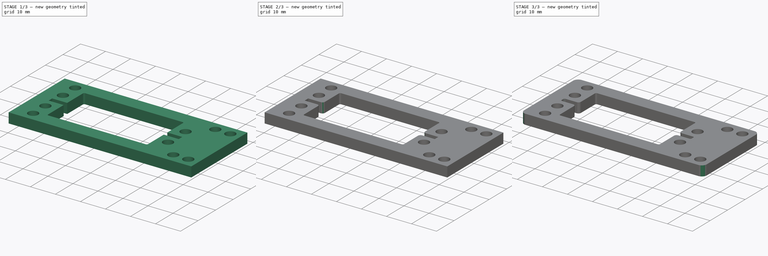
[diagram: build sequence overview — one tinted view per stage of 3, left to right]
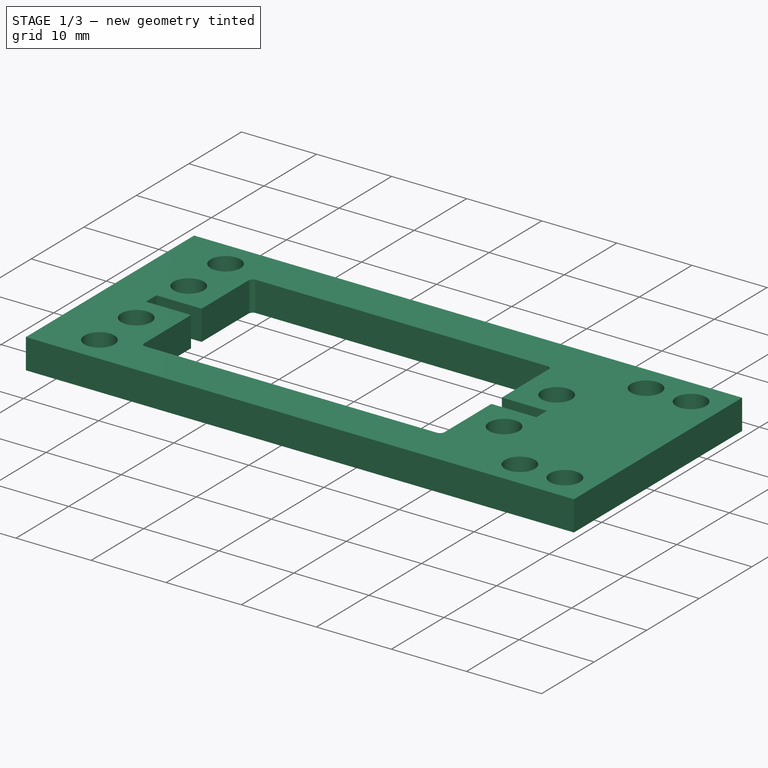
[diagram: stage 1 of 3 — iso view after this stage's code; geometry added in this stage tinted green]
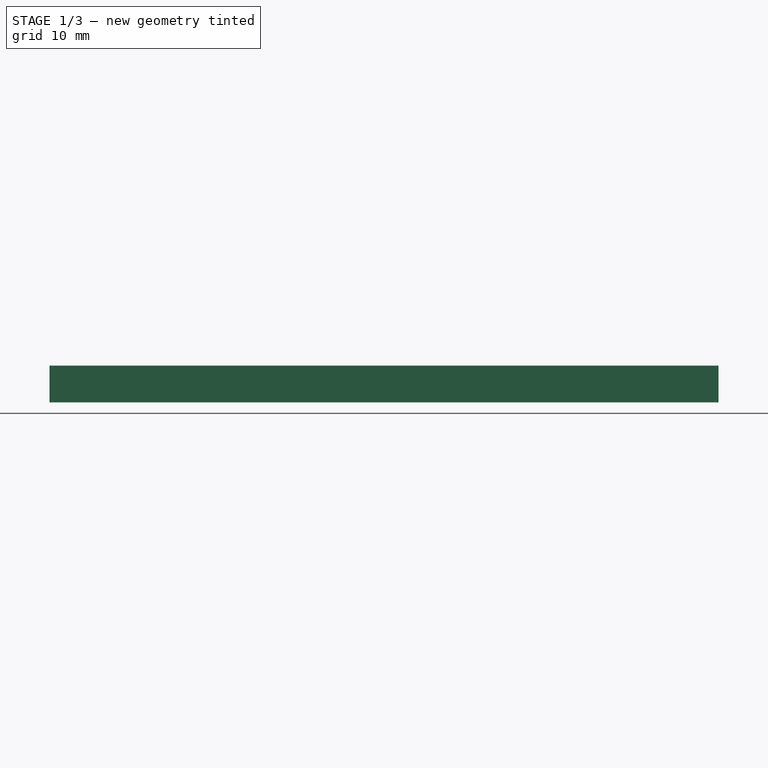
[diagram: stage 1 of 3 — front view after this stage's code; geometry added in this stage tinted green]
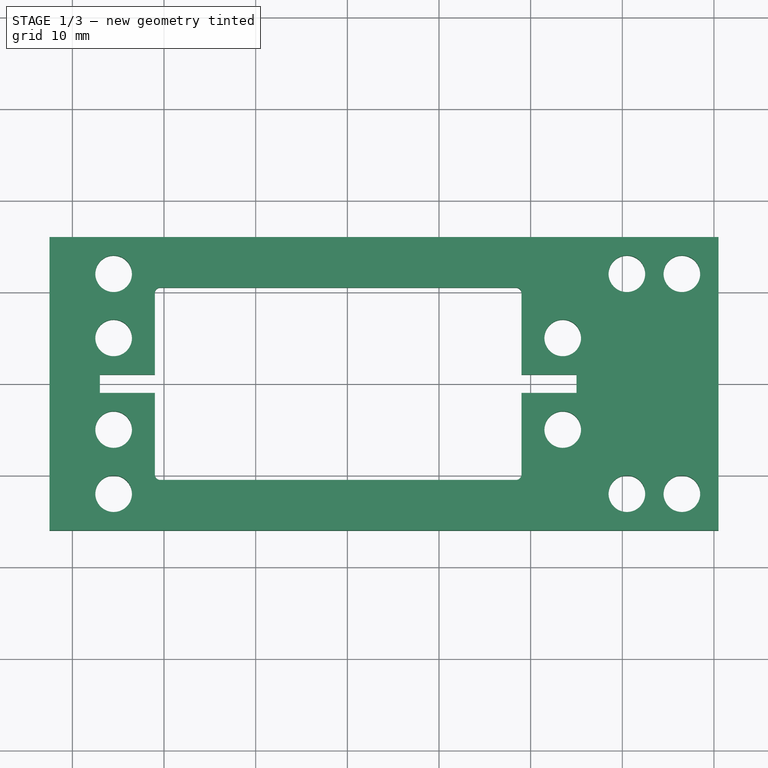
[diagram: stage 1 of 3 — top view after this stage's code; geometry added in this stage tinted green]
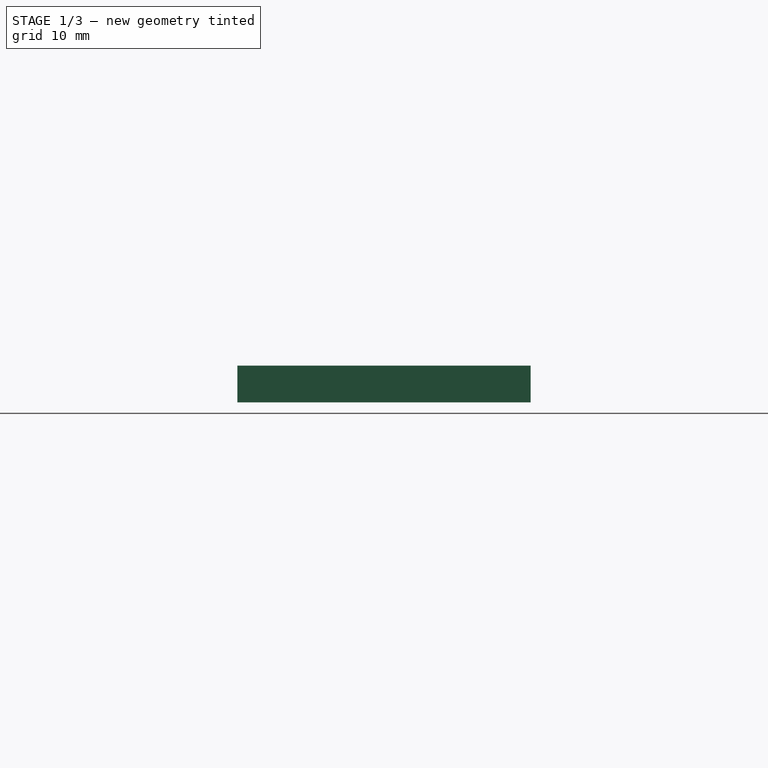
[diagram: stage 1 of 3 — right view after this stage's code; geometry added in this stage tinted green]
FCSTD DOCUMENT  (FreeCAD 0.19R24276 (Git))
Label: Servo_support_V1
License: All rights reserved
LicenseURL: http://en.wikipedia.org/wiki/All_rights_reserved
objects: PartDesign::Fillet×4, Sketcher::SketchObject×1, PartDesign::Pad×1, PartDesign::Body×1
note: 12 computed .brp shape members not serialized (recipe doc carries the construction recipe); baked Part::Feature solids carry a one-line shape summary decoded from their .brp

FEATURE [Sketcher::SketchObject] Sketch007  label="Sketch005_70x032_"
  AttachmentOffset = pos=(0,0,-5) rot=(0,0,1;0rad)
  FullyConstrained = false
  MapMode = 5
  Placement = pos=(0,0,-3) rot=(0,0,1;0rad)
  sketch-geometry (72):
    g0: LineSegment StartX=-31 StartY=16 StartZ=0 EndX=9 EndY=16 EndZ=0
    g1: LineSegment StartX=9 StartY=16 StartZ=0 EndX=9 EndY=-16 EndZ=0
    g2: LineSegment StartX=9 StartY=-16 StartZ=0 EndX=-31 EndY=-16 EndZ=0
    g3: LineSegment StartX=-31 StartY=-16 StartZ=0 EndX=-31 EndY=16 EndZ=0
    g4: LineSegment StartX=-31 StartY=16 StartZ=0 EndX=9 EndY=-16 EndZ=0
    g5: LineSegment StartX=-31 StartY=-16 StartZ=0 EndX=9 EndY=16 EndZ=0
    g6: GeomPoint X=-11 Y=0 Z=0
    g7: GeomPoint X=-11 Y=0 Z=0
    g8: LineSegment StartX=-39.5 StartY=16 StartZ=0 EndX=17.5 EndY=16 EndZ=0
    g9: LineSegment StartX=17.5 StartY=16 StartZ=0 EndX=17.5 EndY=-16 EndZ=0
    g10: LineSegment StartX=17.5 StartY=-16 StartZ=0 EndX=16.3733 EndY=-16 EndZ=0
    g11: LineSegment StartX=-39.5 StartY=-16 StartZ=0 EndX=-39.5 EndY=16 EndZ=0
    g12: LineSegment StartX=-39.5 StartY=16 StartZ=0 EndX=17.5 EndY=-16 EndZ=0
    g13: LineSegment StartX=-39.5 StartY=-16 StartZ=0 EndX=17.5 EndY=16 EndZ=0
    g14: GeomPoint X=-11 Y=0 Z=0
    g15: GeomPoint X=-11 Y=0 Z=0
    g16: Circle CenterX=-35.5 CenterY=5 CenterZ=0 NormalX=0 NormalY=0 NormalZ=1 AngleXU=0 Radius=2
    g17: Circle CenterX=-35.5 CenterY=-5 CenterZ=0 NormalX=0 NormalY=0 NormalZ=1 AngleXU=0 Radius=2
    g18: LineSegment StartX=-11 StartY=0 StartZ=0 EndX=-11 EndY=-5 EndZ=0
    g19: Circle CenterX=13.5 CenterY=5 CenterZ=0 NormalX=0 NormalY=0 NormalZ=1 AngleXU=0 Radius=2
    g20: Circle CenterX=13.5 CenterY=-5 CenterZ=0 NormalX=0 NormalY=0 NormalZ=1 AngleXU=0 Radius=2
    g21: LineSegment StartX=-11 StartY=0 StartZ=0 EndX=-35.5 EndY=0 EndZ=0
    g22: LineSegment StartX=-11 StartY=0 StartZ=0 EndX=49.8748 EndY=0 EndZ=0
    g23: Circle CenterX=-35.5 CenterY=12 CenterZ=0 NormalX=0 NormalY=0 NormalZ=1 AngleXU=0 Radius=2
    g24: Circle CenterX=-35.5 CenterY=-12 CenterZ=0 NormalX=0 NormalY=0 NormalZ=1 AngleXU=0 Radius=2
    g25: Circle CenterX=20.5 CenterY=12 CenterZ=0 NormalX=0 NormalY=0 NormalZ=1 AngleXU=0 Radius=2
    g26: Circle CenterX=20.5 CenterY=-12 CenterZ=0 NormalX=0 NormalY=0 NormalZ=1 AngleXU=0 Radius=2
    g27: LineSegment StartX=24.5 StartY=16 StartZ=0 EndX=24.5 EndY=-16 EndZ=0
    g28: LineSegment StartX=17.5 StartY=16 StartZ=0 EndX=24.5 EndY=16 EndZ=0
    g29: LineSegment StartX=17.5 StartY=-16 StartZ=0 EndX=24.5 EndY=-16 EndZ=0
    g30: ArcOfCircle CenterX=7.75 CenterY=-13.4234 CenterZ=0 NormalX=0 NormalY=0 NormalZ=1 AngleXU=0 Radius=9 StartAngle=3.43194 EndAngle=5.99283
    g31: LineSegment StartX=0 StartY=0 StartZ=0 EndX=7.75 EndY=-13.4234 EndZ=0
    g32: LineSegment StartX=-0.873288 StartY=-16 StartZ=0 EndX=-39.5 EndY=-16 EndZ=0
    g33: Circle CenterX=26.5 CenterY=-12 CenterZ=0 NormalX=0 NormalY=0 NormalZ=1 AngleXU=0 Radius=2
    g34: Circle CenterX=26.5 CenterY=12 CenterZ=0 NormalX=0 NormalY=0 NormalZ=1 AngleXU=0 Radius=2
    g35: LineSegment StartX=30.5 StartY=16 StartZ=0 EndX=30.5 EndY=-16 EndZ=0
    g36: LineSegment StartX=24.5 StartY=16 StartZ=0 EndX=30.5 EndY=16 EndZ=0
    g37: LineSegment StartX=24.5 StartY=-16 StartZ=0 EndX=30.5 EndY=-16 EndZ=0
    g38: LineSegment StartX=-31 StartY=10.5 StartZ=0 EndX=9 EndY=10.5 EndZ=0
    g39: LineSegment StartX=9 StartY=10.5 StartZ=0 EndX=9 EndY=3 EndZ=0
    g40: LineSegment StartX=9 StartY=-10.5 StartZ=0 EndX=-31 EndY=-10.5 EndZ=0
    g41: LineSegment StartX=-31 StartY=-10.5 StartZ=0 EndX=-31 EndY=10.5 EndZ=0
    g42: LineSegment StartX=9 StartY=3 StartZ=0 EndX=15.25 EndY=3 EndZ=0
    g43: LineSegment StartX=15.25 StartY=3 StartZ=0 EndX=15.25 EndY=-3 EndZ=0
    g44: LineSegment StartX=15.25 StartY=-3 StartZ=0 EndX=9.25 EndY=-3 EndZ=0
    g45: LineSegment StartX=9.25 StartY=-3 StartZ=0 EndX=9.25 EndY=0 EndZ=0
    g46: LineSegment StartX=-11 StartY=0 StartZ=0 EndX=15.25 EndY=0 EndZ=0
    g47: LineSegment StartX=9 StartY=-3 StartZ=0 EndX=9 EndY=-10.5 EndZ=0
    g48: LineSegment StartX=15.25 StartY=3 StartZ=0 EndX=15.25 EndY=2.5 EndZ=0
    g49: LineSegment StartX=9 StartY=3 StartZ=0 EndX=15.25 EndY=2.5 EndZ=0
    g50: LineSegment StartX=15.25 StartY=-3 StartZ=0 EndX=15.25 EndY=-2.5 EndZ=0
    g51: LineSegment StartX=9.25 StartY=-3 StartZ=0 EndX=15.25 EndY=-2.5 EndZ=0
    g52: LineSegment StartX=15.25 StartY=2.5 StartZ=0 EndX=15.25 EndY=-2.5 EndZ=0
    g53: LineSegment StartX=-39.5 StartY=-16 StartZ=0 EndX=30.5 EndY=-16 EndZ=0
    g54: LineSegment StartX=30.5 StartY=16 StartZ=0 EndX=-39.5 EndY=16 EndZ=0
    g55: LineSegment StartX=-31 StartY=1 StartZ=0 EndX=-37 EndY=1 EndZ=0
    g56: LineSegment StartX=-37 StartY=1 StartZ=0 EndX=-37 EndY=-1 EndZ=0
    g57: LineSegment StartX=-37 StartY=-1 StartZ=0 EndX=-31 EndY=-1 EndZ=0
    g58: LineSegment StartX=-31 StartY=-1 StartZ=0 EndX=-31 EndY=1 EndZ=0
    g59: LineSegment StartX=-35.5 StartY=0 StartZ=0 EndX=-31 EndY=0 EndZ=0
    g60: LineSegment StartX=9 StartY=1 StartZ=0 EndX=15 EndY=1 EndZ=0
    g61: LineSegment StartX=15 StartY=1 StartZ=0 EndX=15 EndY=-1 EndZ=0
    g62: LineSegment StartX=15 StartY=-1 StartZ=0 EndX=9 EndY=-1 EndZ=0
    g63: LineSegment StartX=9 StartY=-1 StartZ=0 EndX=9 EndY=1 EndZ=0
    g64: LineSegment StartX=13.5 StartY=0 StartZ=0 EndX=9 EndY=0 EndZ=0
    g65: LineSegment StartX=9 StartY=10.5 StartZ=0 EndX=9 EndY=1 EndZ=0
    g66: LineSegment StartX=9 StartY=-1 StartZ=0 EndX=9 EndY=-10.5 EndZ=0
    g67: LineSegment StartX=-31 StartY=10.5 StartZ=0 EndX=-31 EndY=1 EndZ=0
    g68: LineSegment StartX=-31 StartY=-1 StartZ=0 EndX=-31 EndY=-10.5 EndZ=0
    g69: LineSegment StartX=-42.5 StartY=16 StartZ=0 EndX=-42.5 EndY=-16 EndZ=0
    g70: LineSegment StartX=30.5 StartY=16 StartZ=0 EndX=-42.5 EndY=16 EndZ=0
    g71: LineSegment StartX=30.5 StartY=-16 StartZ=0 EndX=-42.5 EndY=-16 EndZ=0
  constraints (173):
    c: Coincident(g0,g1)
    c: Coincident(g1,g2)
    c: Coincident(g2,g3)
    c: Coincident(g3,g0)
    c: Horizontal(g0)
    c: Horizontal(g2)
    c: Vertical(g1)
    c: Vertical(g3)
    c: DistanceX(g2,g2) = 40
    c: Coincident(g4,g0)
    c: Coincident(g4,g1)
    c: Coincident(g5,g2)
    c: Coincident(g5,g0)
    c: PointOnObject(g6,g4)
    c: PointOnObject(g7,g5)
    c: Coincident(g7,g6)
    c: Coincident(g8,g9)
    c: Coincident(g9,g10)
    c: Coincident(g11,g8)
    c: Horizontal(g8)
    c: Horizontal(g10)
    c: Vertical(g9)
    c: Vertical(g11)
    c: Coincident(g12,g8)
    c: Coincident(g12,g9)
    c: Coincident(g13,g8)
    c: Equal(g9,g1)
    c: PointOnObject(g14,g13)
    c: PointOnObject(g15,g12)
    c: Coincident(g15,g14)
    c: Coincident(g14,g6)
    c: DistanceX(g32,g10) = 57
    c: Vertical(g17,g16)
    c: Coincident(g18,g6)
    c: Vertical(g18)
    c: Equal(g20,g19)
    c: Equal(g19,g17)
    c: Equal(g17,g16)
    c: Diameter(g20) = 4
    c: Vertical(g19,g20)
    c: Horizontal(g17,g20)
    c: Horizontal(g16,g19)
    c: Coincident(g21,g6)
    c: Horizontal(g21)
    c: Symmetric(g17,g16,g21)
    c: Coincident(g22,g6)
    c: Horizontal(g22)
    c: Symmetric(g17,g20,g18)
    c: DistanceY(g20,g19) = 10
    c: DistanceX(g17,g20) = 49
    c: Horizontal(g6,g-1)
    c: Coincident(g13,g11)
    c: Coincident(g32,g11)
    c: DistanceY(g9,g9) = 32
    c: DistanceX(g-1,g1) = 9
    c: Equal(g16,g24)
    c: Equal(g24,g23)
    c: Vertical(g23,g24)
    c: Vertical(g24,g16)
    c: DistanceY(g24,g23) = 24
    c: DistanceY(g21,g23) = 12
    c: Equal(g19,g25)
    c: Equal(g25,g26)
    c: Vertical(g25,g26)
    c: DistanceX(g24,g26) = 56
    c: Horizontal(g26,g24)
    c: Horizontal(g23,g25)
    c: Vertical(g27)
    c: Coincident(g28,g8)
    c: Horizontal(g28)
    c: Coincident(g29,g10)
    c: Horizontal(g29)
    c: Coincident(g27,g29)
    c: Coincident(g27,g28)
    c: DistanceX(g8,g27) = 64
    c: Coincident(g31,g-1)
    c: Coincident(g31,g30)
    c: Angle(g31,g22) = 1.0472
    c: Distance(g31) = 15.5
    c: Diameter(g30) = 18
    c: PointOnObject(g32,g30)
    c: Tangent(g10,g32)
    c: PointOnObject(g30,g2)
    c: Coincident(g30,g10)
    c: Equal(g34,g33)
    c: Vertical(g34,g33)
    c: DistanceX(g26,g33) = 6
    c: Vertical(g35)
    c: Coincident(g36,g27)
    c: Horizontal(g36)
    c: Coincident(g37,g27)
    c: Horizontal(g37)
    c: Coincident(g37,g35)
    c: Coincident(g36,g35)
    c: DistanceX(g33,g35) = 4
    c: Coincident(g38,g39)
    c: Coincident(g47,g40)
    c: Coincident(g40,g41)
    c: Coincident(g41,g38)
    c: Horizontal(g38)
    c: Horizontal(g40)
    c: Vertical(g39)
    c: Vertical(g41)
    c: Symmetric(g38,g47,g6)
    c: DistanceX(g40,g40) = 40
    c: DistanceY(g41,g41) = 21
    c: Coincident(g42,g43)
    c: Coincident(g43,g44)
    c: Coincident(g44,g45)
    c: Horizontal(g42)
    c: Horizontal(g44)
    c: Vertical(g43)
    c: Vertical(g45)
    c: DistanceX(g44,g44) = 6
    c: DistanceY(g43,g43) = 6
    c: Coincident(g46,g6)
    c: Symmetric(g42,g43,g46)
    c: Horizontal(g46)
    c: PointOnObject(g47,g44)
    c: Tangent(g39,g47)
    c: Coincident(g39,g42)
    c: PointOnObject(g45,g22)
    c: Coincident(g48,g42)
    c: Vertical(g48)
    c: DistanceY(g48,g42) = 0.5
    c: Coincident(g49,g39)
    c: Coincident(g49,g48)
    c: Coincident(g50,g44)
    c: DistanceY(g44,g50) = 0.5
    c: Coincident(g51,g44)
    c: Coincident(g51,g50)
    c: Coincident(g52,g48)
    c: Coincident(g52,g50)
    c: Vertical(g52)
    c: Coincident(g54,g35)
    c: Coincident(g55,g56)
    c: Coincident(g56,g57)
    c: Coincident(g57,g58)
    c: Coincident(g58,g55)
    c: Horizontal(g55)
    c: Horizontal(g57)
    c: Vertical(g56)
    c: Vertical(g58)
    c: PointOnObject(g55,g41)
    c: Coincident(g59,g21)
    c: Symmetric(g57,g55,g59)
    c: DistanceY(g56,g56) = 2
    c: Horizontal(g59)
    c: DistanceX(g57,g57) = 6
    c: Coincident(g60,g61)
    c: Coincident(g61,g62)
    c: Coincident(g62,g63)
    c: Coincident(g63,g60)
    c: Horizontal(g60)
    c: Horizontal(g62)
    c: Vertical(g61)
    c: Vertical(g63)
    c: Symmetric(g62,g60,g64)
    c: Horizontal(g64)
    c: Coincident(g65,g38)
    c: Coincident(g65,g60)
    c: Vertical(g65)
    c: Coincident(g66,g62)
    c: Coincident(g67,g38)
    c: Coincident(g68,g57)
    c: Vertical(g69)
    c: Coincident(g70,g35)
    c: Horizontal(g70)
    c: Coincident(g71,g35)
    c: Horizontal(g71)
    c: Coincident(g69,g70)
    c: Coincident(g69,g71)
    c: DistanceX(g69,g11) = 3
FEATURE [PartDesign::Pad] Pad
  Direction = (1,1,1)
  Length = 4
  Length2 = 100
  Placement = pos=(0,0,-3) rot=(0,0,1;0rad)
  Profile = -> Sketch007
  Type = 0
FEATURE [PartDesign::Fillet] Fillet
  Base = -> Pad [Edge29,Edge44,Edge13,Edge26]
  BaseFeature = -> Pad
  Placement = pos=(0,0,-3) rot=(0,0,1;0rad)
  Radius = 0.6
  SupportTransform = false
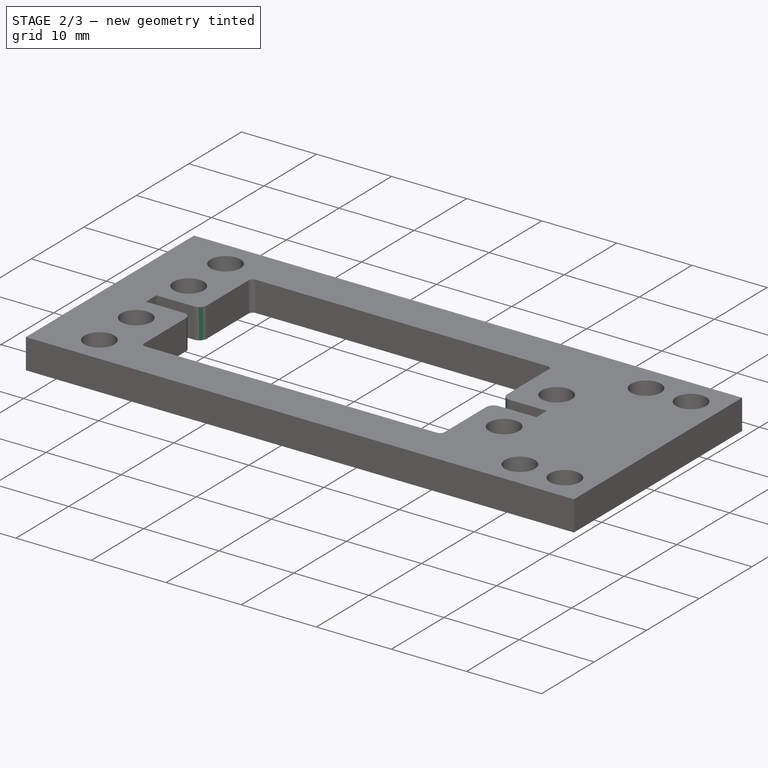
[diagram: stage 2 of 3 — iso view after this stage's code; geometry added in this stage tinted green]
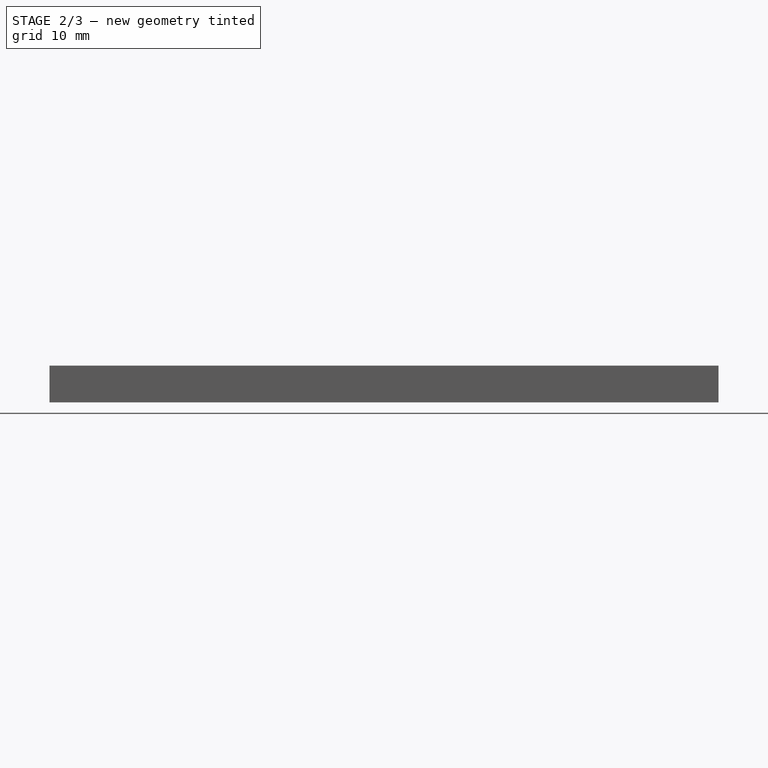
[diagram: stage 2 of 3 — front view after this stage's code; geometry added in this stage tinted green]
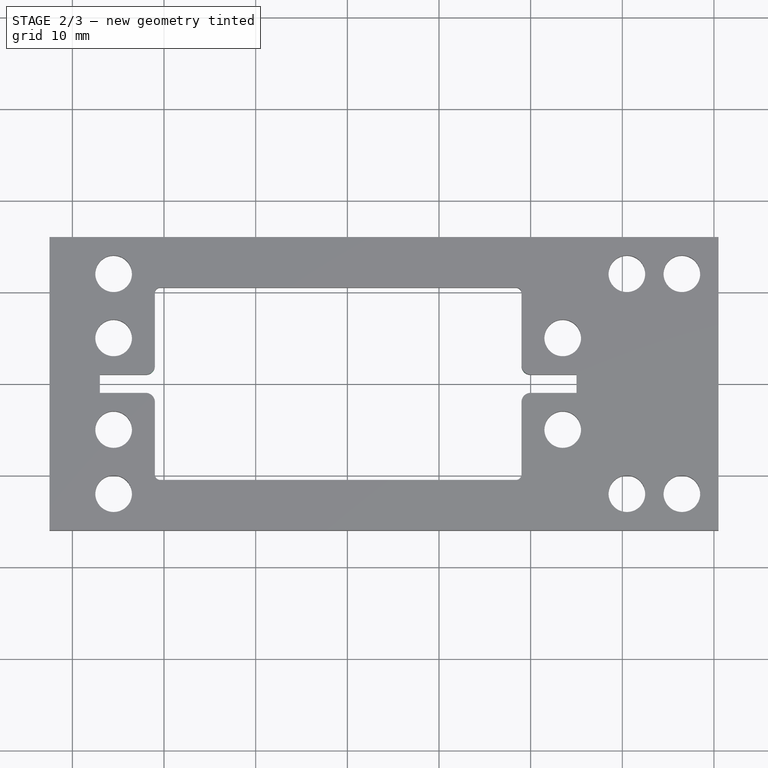
[diagram: stage 2 of 3 — top view after this stage's code; geometry added in this stage tinted green]
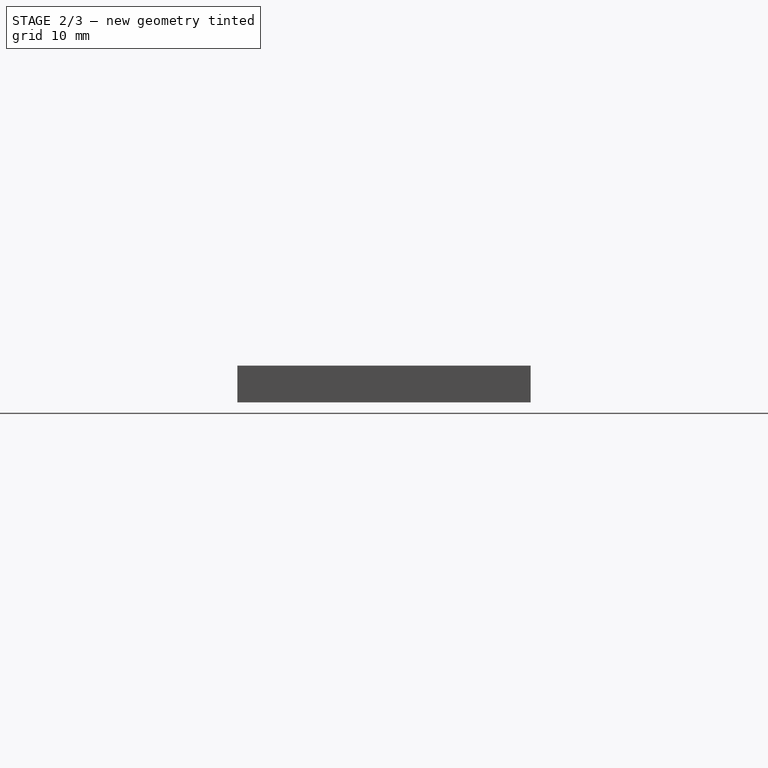
[diagram: stage 2 of 3 — right view after this stage's code; geometry added in this stage tinted green]
FEATURE [PartDesign::Fillet] Fillet001
  Base = -> Fillet [Edge68,Edge3,Edge75,Edge69]
  BaseFeature = -> Fillet
  Placement = pos=(0,0,-3) rot=(0,0,1;0rad)
  Radius = 1
  SupportTransform = false
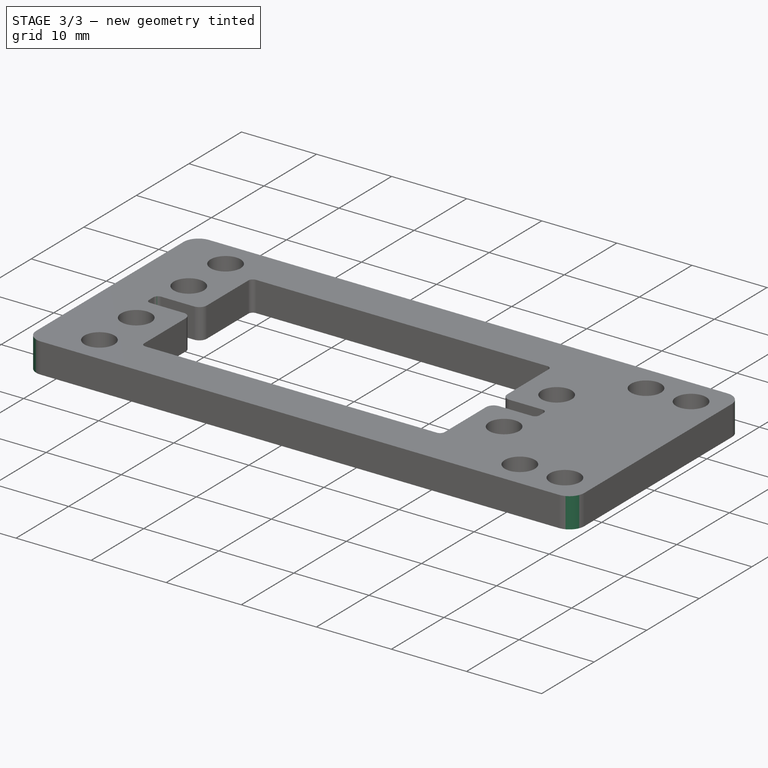
[diagram: stage 3 of 3 — iso view after this stage's code; geometry added in this stage tinted green]
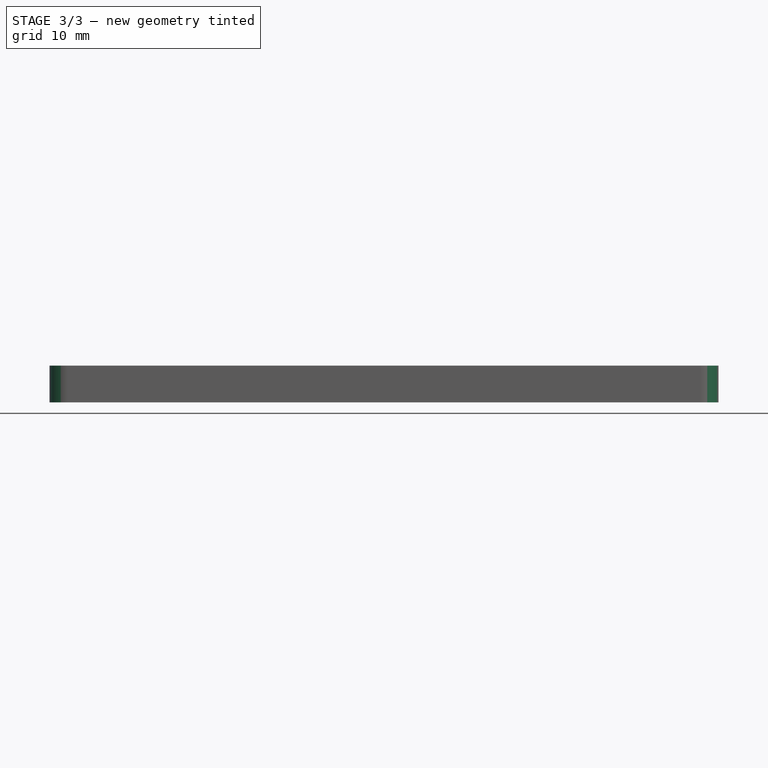
[diagram: stage 3 of 3 — front view after this stage's code; geometry added in this stage tinted green]
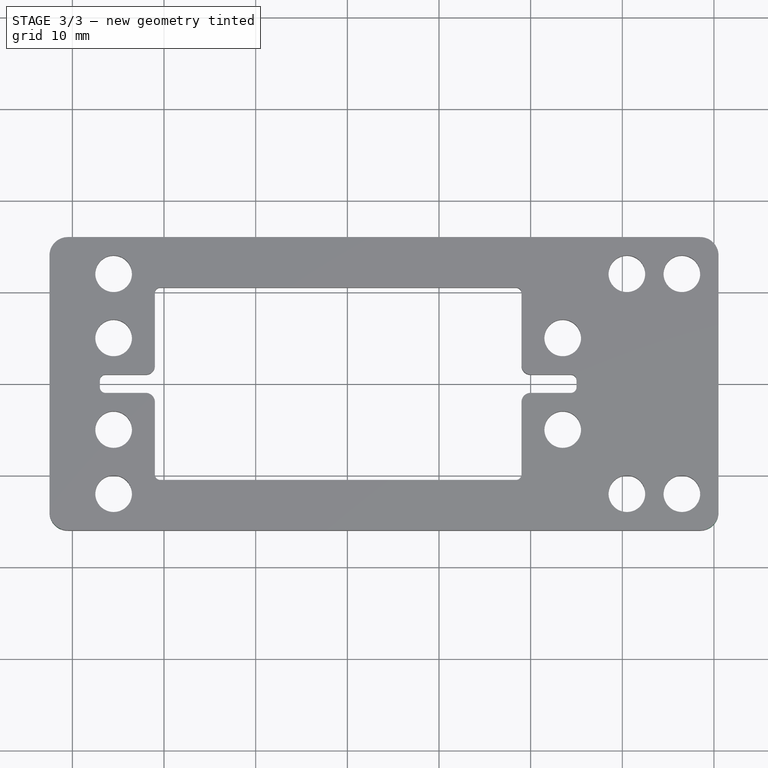
[diagram: stage 3 of 3 — top view after this stage's code; geometry added in this stage tinted green]
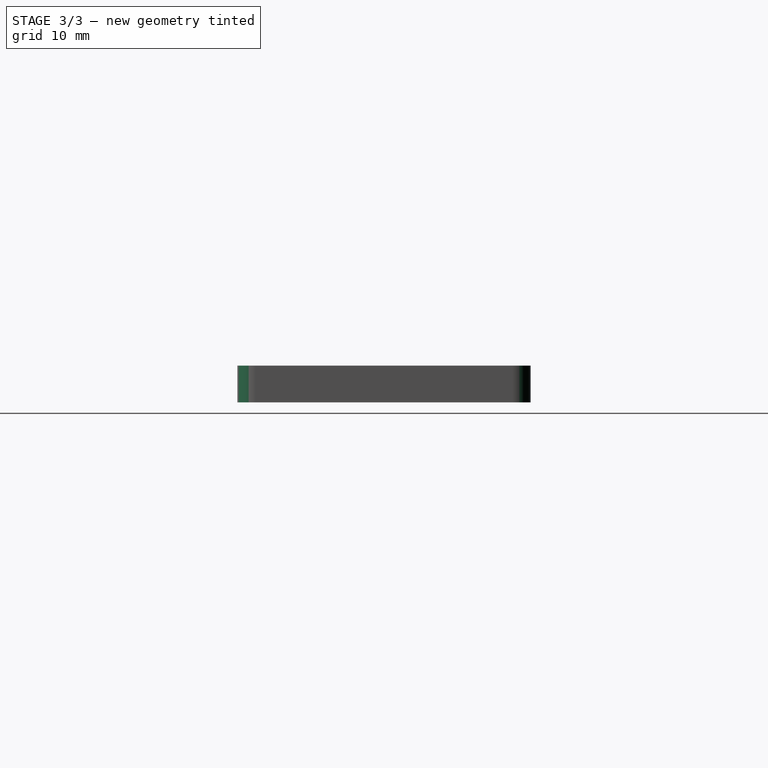
[diagram: stage 3 of 3 — right view after this stage's code; geometry added in this stage tinted green]
FEATURE [PartDesign::Fillet] Fillet002
  Base = -> Fillet001 [Edge75,Edge73,Edge84,Edge82]
  BaseFeature = -> Fillet001
  Placement = pos=(0,0,-3) rot=(0,0,1;0rad)
  Radius = 0.6
  SupportTransform = false
FEATURE [PartDesign::Fillet] Fillet003
  Base = -> Fillet002 [Edge87,Edge90,Edge88,Edge92]
  BaseFeature = -> Fillet002
  Placement = pos=(0,0,-3) rot=(0,0,1;0rad)
  Radius = 2
  SupportTransform = false
FEATURE [PartDesign::Body] Body
  Group = -> [Sketch007,Pad,Fillet,Fillet001,Fillet002,Fillet003]
  Origin = -> Origin
  Tip = -> Fillet003
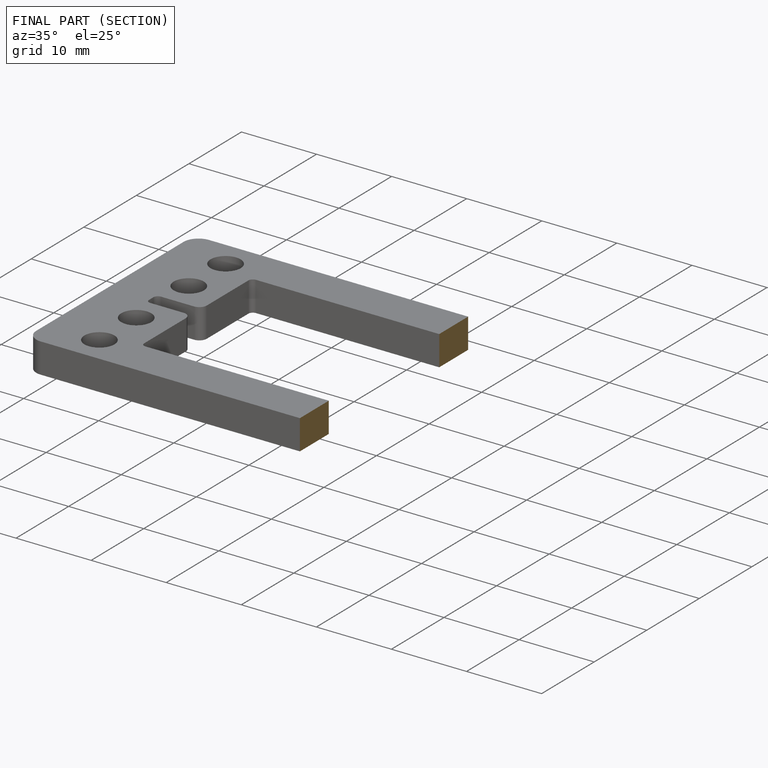
[diagram: finished part — half-section view (interior)]
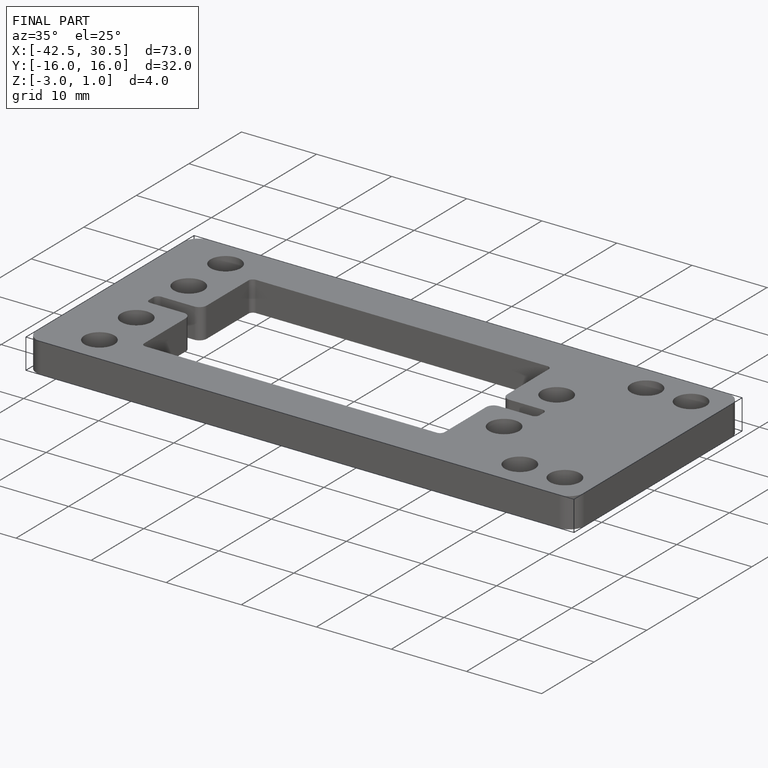
[diagram: finished part — iso view with bounding-box wireframe]
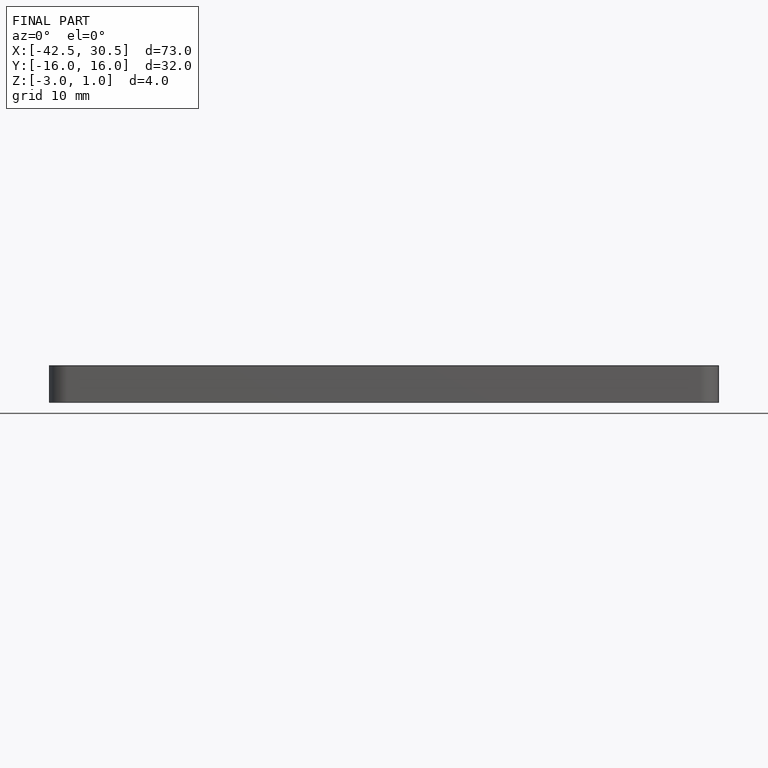
[diagram: finished part — front view with bounding-box wireframe]
